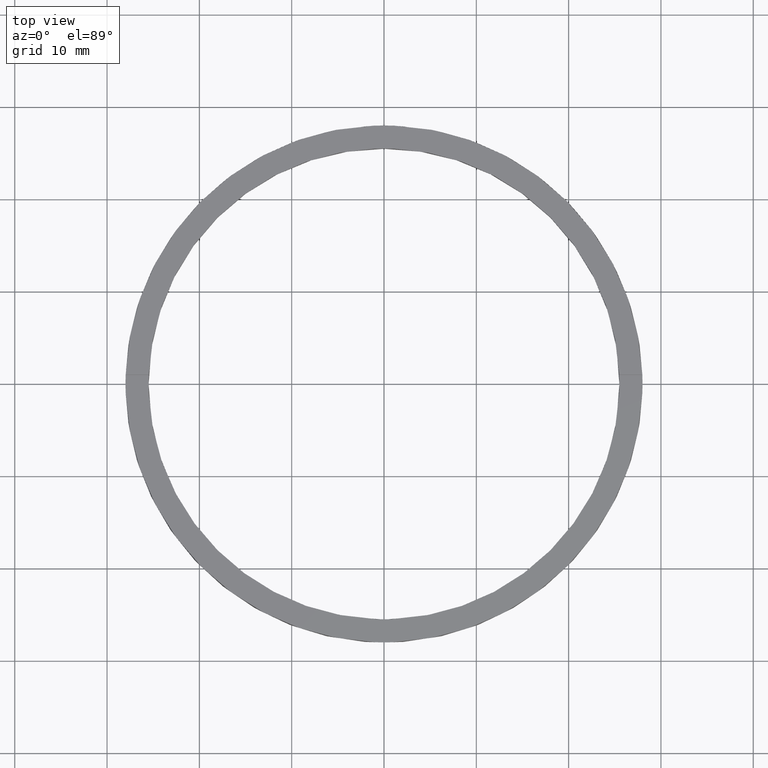
[diagram: clean part render]
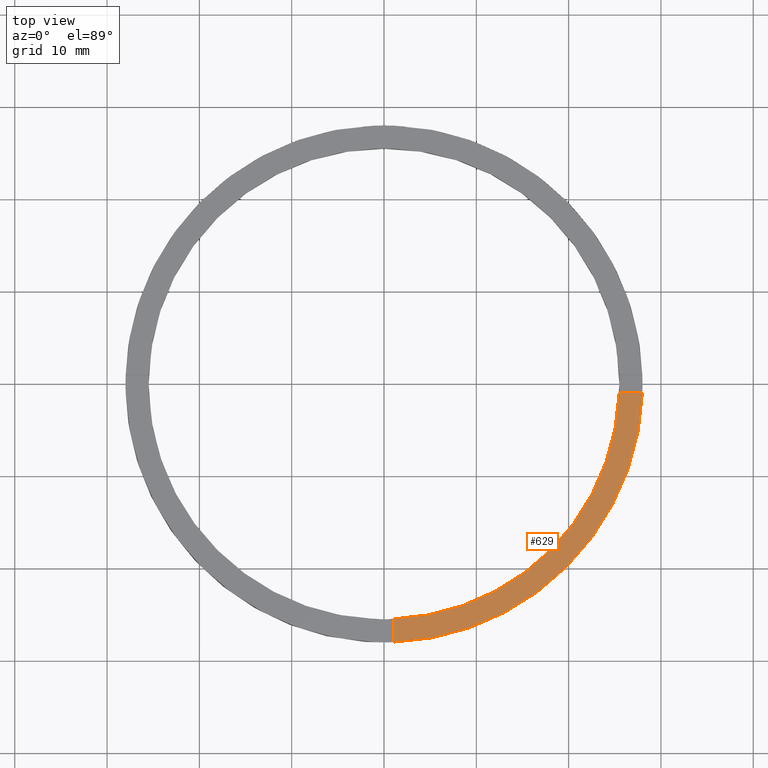
[diagram: same view with one face highlighted and labeled with its STEP entity id]
A machine part, top view. The second image highlights one B-rep face of the part: STEP entity #629.
In plain terms, the highlighted planar face has unit normal (0, 0, 1).
Its self-contained STEP definition (entity closure, byte-faithful):
#3 = DIRECTION ( 'NONE',  ( 0.000000000000000000, 0.000000000000000000, 1.000000000000000000 ) ) ;
#27 = EDGE_CURVE ( 'NONE', #476, #204, #451, .T. ) ;
#51 = EDGE_CURVE ( 'NONE', #258, #767, #639, .T. ) ;
#153 = DIRECTION ( 'NONE',  ( 0.000000000000000000, 0.000000000000000000, 1.000000000000000000 ) ) ;
#155 = DIRECTION ( 'NONE',  ( 1.000000000000000000, 4.336808689942018352E-17, 0.000000000000000000 ) ) ;
#184 = CARTESIAN_POINT ( 'NONE',  ( 0.9999999999998389066, -18.00000000000018119, 2.500000000000000000 ) ) ;
#196 = ORIENTED_EDGE ( 'NONE', *, *, #748, .F. ) ;
#198 = DIRECTION ( 'NONE',  ( 1.000000000000000000, 0.000000000000000000, 0.000000000000000000 ) ) ;
#202 = CARTESIAN_POINT ( 'NONE',  ( 0.000000000000000000, 0.000000000000000000, 2.500000000000000000 ) ) ;
#204 = VERTEX_POINT ( 'NONE', #638 ) ;
#208 = CARTESIAN_POINT ( 'NONE',  ( 0.000000000000000000, 0.000000000000000000, 2.500000000000000000 ) ) ;
#217 = ORIENTED_EDGE ( 'NONE', *, *, #51, .T. ) ;
#247 = ORIENTED_EDGE ( 'NONE', *, *, #303, .F. ) ;
#253 = DIRECTION ( 'NONE',  ( -1.301042606982605567E-16, 1.000000000000000000, -0.000000000000000000 ) ) ;
#258 = VERTEX_POINT ( 'NONE', #483 ) ;
#301 = VECTOR ( 'NONE', #253, 1000.000000000000000 ) ;
#303 = EDGE_CURVE ( 'NONE', #204, #767, #708, .T. ) ;
#328 = CARTESIAN_POINT ( 'NONE',  ( 27.98213715926643985, -1.000000000000156986, 2.500000000000000000 ) ) ;
#329 = LINE ( 'NONE', #184, #301 ) ;
#330 = DIRECTION ( 'NONE',  ( 0.000000000000000000, 0.000000000000000000, 1.000000000000000000 ) ) ;
#349 = ORIENTED_EDGE ( 'NONE', *, *, #27, .F. ) ;
#394 = AXIS2_PLACEMENT_3D ( 'NONE', #208, #330, #198 ) ;
#447 = CARTESIAN_POINT ( 'NONE',  ( 0.000000000000000000, 0.000000000000000000, 2.500000000000000000 ) ) ;
#451 = CIRCLE ( 'NONE', #528, 25.50000000000000000 ) ;
#476 = VERTEX_POINT ( 'NONE', #685 ) ;
#483 = CARTESIAN_POINT ( 'NONE',  ( 0.9999999999998402389, -27.98213715926645051, 2.500000000000000000 ) ) ;
#528 = AXIS2_PLACEMENT_3D ( 'NONE', #447, #153, #740 ) ;
#554 = DIRECTION ( 'NONE',  ( 1.000000000000000000, 0.000000000000000000, -0.000000000000000000 ) ) ;
#557 = CARTESIAN_POINT ( 'NONE',  ( 18.00000000000000000, -1.000000000000157430, 2.500000000000000000 ) ) ;
#583 = FACE_OUTER_BOUND ( 'NONE', #765, .T. ) ;
#629 = ADVANCED_FACE ( 'NONE', ( #583 ), #779, .T. ) ;
#638 = CARTESIAN_POINT ( 'NONE',  ( 25.48038461248180653, -1.000000000000157208, 2.500000000000000000 ) ) ;
#639 = CIRCLE ( 'NONE', #394, 28.00000000000000000 ) ;
#671 = AXIS2_PLACEMENT_3D ( 'NONE', #202, #3, #554 ) ;
#685 = CARTESIAN_POINT ( 'NONE',  ( 0.9999999999998397948, -25.48038461248181719, 2.500000000000000000 ) ) ;
#702 = VECTOR ( 'NONE', #155, 1000.000000000000000 ) ;
#708 = LINE ( 'NONE', #557, #702 ) ;
#740 = DIRECTION ( 'NONE',  ( 1.000000000000000000, 0.000000000000000000, 0.000000000000000000 ) ) ;
#748 = EDGE_CURVE ( 'NONE', #258, #476, #329, .T. ) ;
#765 = EDGE_LOOP ( 'NONE', ( #247, #349, #196, #217 ) ) ;
#767 = VERTEX_POINT ( 'NONE', #328 ) ;
#779 = PLANE ( 'NONE',  #671 ) ;